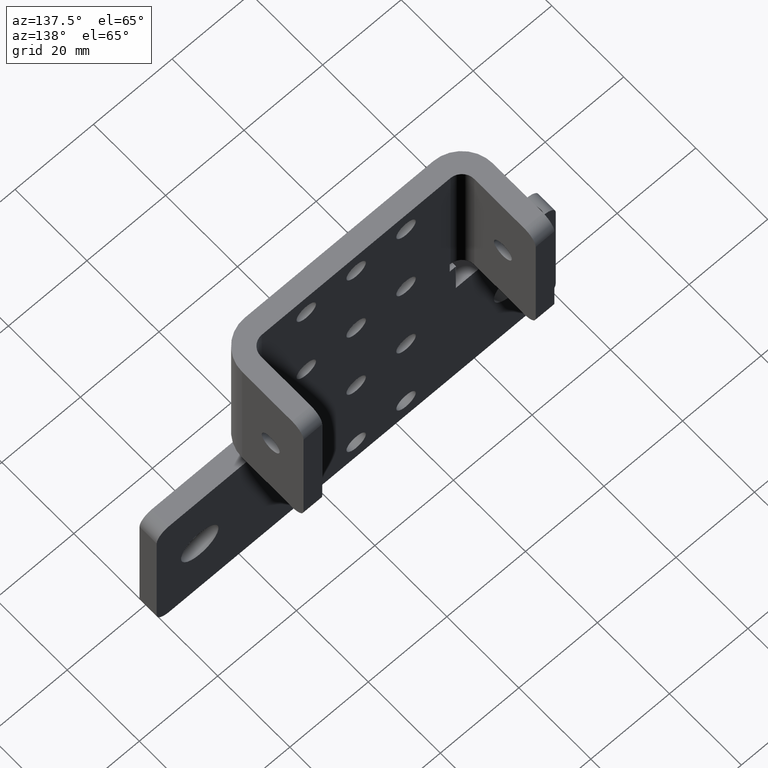
[diagram: clean part render]
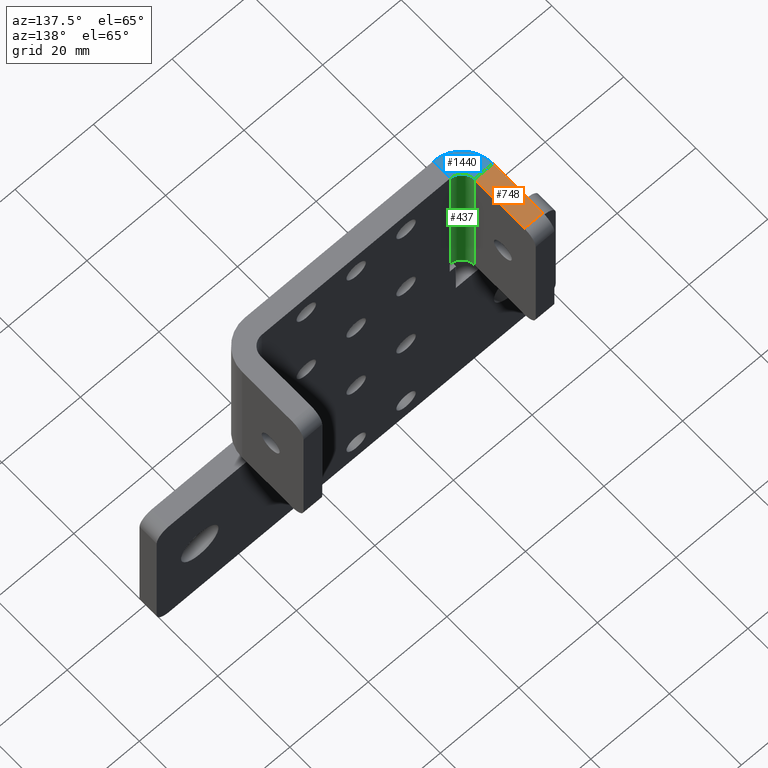
[diagram: same view with three faces highlighted in distinct colors, each labeled with its STEP entity id]
A machine part, auxiliary view with three faces highlighted in distinct colors.
Their STEP definitions:

[orange] entity #748 — the highlighted planar face has unit normal (0, 0, 1).
#39 = LINE ( 'NONE', #1433, #1728 ) ;
#78 = VERTEX_POINT ( 'NONE', #563 ) ;
#105 = DIRECTION ( 'NONE',  ( -1.000000000000000000, -3.429815434606731363E-15, 3.055308241372560376E-27 ) ) ;
#169 = CARTESIAN_POINT ( 'NONE',  ( 0.7424999999999980504, 0.8589999999999997637, 1.999999999999999778 ) ) ;
#190 = ORIENTED_EDGE ( 'NONE', *, *, #1309, .F. ) ;
#231 = VECTOR ( 'NONE', #105, 39.37007874015748143 ) ;
#351 = CARTESIAN_POINT ( 'NONE',  ( 0.9299999999999978284, 0.8590000000000005409, 1.999999999999999778 ) ) ;
#446 = DIRECTION ( 'NONE',  ( 3.429815434606730968E-15, -1.000000000000000000, -1.047914336374075238E-41 ) ) ;
#467 = ORIENTED_EDGE ( 'NONE', *, *, #969, .F. ) ;
#529 = CARTESIAN_POINT ( 'NONE',  ( 0.7424999999999998268, 0.3124999999999991118, 1.999999999999999778 ) ) ;
#563 = CARTESIAN_POINT ( 'NONE',  ( 0.7424999999999979394, 0.8589999999999997637, 1.999999999999999778 ) ) ;
#656 = LINE ( 'NONE', #169, #1392 ) ;
#664 = VERTEX_POINT ( 'NONE', #351 ) ;
#690 = EDGE_CURVE ( 'NONE', #78, #765, #39, .T. ) ;
#730 = VERTEX_POINT ( 'NONE', #1770 ) ;
#748 = ADVANCED_FACE ( 'NONE', ( #1503 ), #1073, .T. ) ;
#765 = VERTEX_POINT ( 'NONE', #529 ) ;
#772 = DIRECTION ( 'NONE',  ( -1.000000000000000000, -3.491481338843134539E-15, 3.055308241372560376E-27 ) ) ;
#828 = ORIENTED_EDGE ( 'NONE', *, *, #690, .T. ) ;
#846 = LINE ( 'NONE', #1118, #1771 ) ;
#969 = EDGE_CURVE ( 'NONE', #664, #730, #846, .T. ) ;
#1070 = LINE ( 'NONE', #1806, #231 ) ;
#1073 = PLANE ( 'NONE',  #1576 ) ;
#1118 = CARTESIAN_POINT ( 'NONE',  ( 0.9300000000000008260, -1.007508283915726926E-14, 1.999999999999999778 ) ) ;
#1200 = DIRECTION ( 'NONE',  ( 1.000000000000000000, 0.0000000000000000000, -3.055308241372560376E-27 ) ) ;
#1270 = EDGE_CURVE ( 'NONE', #664, #78, #656, .T. ) ;
#1285 = EDGE_LOOP ( 'NONE', ( #467, #1536, #828, #190 ) ) ;
#1309 = EDGE_CURVE ( 'NONE', #730, #765, #1070, .T. ) ;
#1392 = VECTOR ( 'NONE', #772, 39.37007874015748143 ) ;
#1410 = CARTESIAN_POINT ( 'NONE',  ( 0.7425000000000003819, 0.1874999999999993616, 1.999999999999999778 ) ) ;
#1433 = CARTESIAN_POINT ( 'NONE',  ( 0.7425000000000001599, 0.1874999999999993616, 1.999999999999999778 ) ) ;
#1503 = FACE_OUTER_BOUND ( 'NONE', #1285, .T. ) ;
#1508 = DIRECTION ( 'NONE',  ( 3.055308241372560376E-27, 0.0000000000000000000, 1.000000000000000000 ) ) ;
#1517 = DIRECTION ( 'NONE',  ( 3.429815434606730968E-15, -1.000000000000000000, -1.047914336374075238E-41 ) ) ;
#1536 = ORIENTED_EDGE ( 'NONE', *, *, #1270, .T. ) ;
#1576 = AXIS2_PLACEMENT_3D ( 'NONE', #1410, #1508, #1200 ) ;
#1728 = VECTOR ( 'NONE', #446, 39.37007874015748143 ) ;
#1770 = CARTESIAN_POINT ( 'NONE',  ( 0.9299999999999998268, 0.3124999999999996669, 1.999999999999999778 ) ) ;
#1771 = VECTOR ( 'NONE', #1517, 39.37007874015748143 ) ;
#1806 = CARTESIAN_POINT ( 'NONE',  ( 0.9300000000000000488, 0.3124999999999997224, 1.999999999999999778 ) ) ;

[blue] entity #1440 — the highlighted planar face has unit normal (0, 0, -1).
#73 = EDGE_CURVE ( 'NONE', #765, #754, #1428, .T. ) ;
#105 = DIRECTION ( 'NONE',  ( -1.000000000000000000, -3.429815434606731363E-15, 3.055308241372560376E-27 ) ) ;
#110 = EDGE_LOOP ( 'NONE', ( #639, #923, #687, #370 ) ) ;
#216 = DIRECTION ( 'NONE',  ( 1.092739197465705090E-15, -1.000000000000000000, 0.0000000000000000000 ) ) ;
#231 = VECTOR ( 'NONE', #105, 39.37007874015748143 ) ;
#254 = FACE_OUTER_BOUND ( 'NONE', #110, .T. ) ;
#295 = AXIS2_PLACEMENT_3D ( 'NONE', #1763, #1527, #507 ) ;
#370 = ORIENTED_EDGE ( 'NONE', *, *, #1573, .F. ) ;
#476 = CIRCLE ( 'NONE', #630, 0.1250000000000000278 ) ;
#507 = DIRECTION ( 'NONE',  ( 1.000000000000000000, 0.0000000000000000000, 0.0000000000000000000 ) ) ;
#529 = CARTESIAN_POINT ( 'NONE',  ( 0.7424999999999998268, 0.3124999999999991118, 1.999999999999999778 ) ) ;
#577 = CARTESIAN_POINT ( 'NONE',  ( 1.055000000000000160, 6.829619984160658046E-17, 1.999999999999999778 ) ) ;
#630 = AXIS2_PLACEMENT_3D ( 'NONE', #1740, #911, #1598 ) ;
#639 = ORIENTED_EDGE ( 'NONE', *, *, #1495, .F. ) ;
#660 = CARTESIAN_POINT ( 'NONE',  ( 1.054999999999999716, 0.3125000000000000555, 1.999999999999999778 ) ) ;
#687 = ORIENTED_EDGE ( 'NONE', *, *, #73, .T. ) ;
#730 = VERTEX_POINT ( 'NONE', #1770 ) ;
#754 = VERTEX_POINT ( 'NONE', #577 ) ;
#765 = VERTEX_POINT ( 'NONE', #529 ) ;
#847 = CARTESIAN_POINT ( 'NONE',  ( 1.054999999999999938, 0.1875000000000000555, 1.999999999999999778 ) ) ;
#891 = VECTOR ( 'NONE', #216, 39.37007874015748143 ) ;
#911 = DIRECTION ( 'NONE',  ( -0.0000000000000000000, -0.0000000000000000000, 1.000000000000000000 ) ) ;
#923 = ORIENTED_EDGE ( 'NONE', *, *, #1309, .T. ) ;
#968 = AXIS2_PLACEMENT_3D ( 'NONE', #660, #1811, #1641 ) ;
#979 = LINE ( 'NONE', #847, #891 ) ;
#1070 = LINE ( 'NONE', #1806, #231 ) ;
#1171 = VERTEX_POINT ( 'NONE', #1355 ) ;
#1309 = EDGE_CURVE ( 'NONE', #730, #765, #1070, .T. ) ;
#1355 = CARTESIAN_POINT ( 'NONE',  ( 1.054999999999999938, 0.1875000000000000555, 1.999999999999999778 ) ) ;
#1428 = CIRCLE ( 'NONE', #295, 0.3125000000000000000 ) ;
#1440 = ADVANCED_FACE ( 'NONE', ( #254 ), #1581, .F. ) ;
#1495 = EDGE_CURVE ( 'NONE', #730, #1171, #476, .T. ) ;
#1527 = DIRECTION ( 'NONE',  ( -0.0000000000000000000, -0.0000000000000000000, 1.000000000000000000 ) ) ;
#1573 = EDGE_CURVE ( 'NONE', #1171, #754, #979, .T. ) ;
#1581 = PLANE ( 'NONE',  #968 ) ;
#1598 = DIRECTION ( 'NONE',  ( 1.000000000000000000, 0.0000000000000000000, 0.0000000000000000000 ) ) ;
#1641 = DIRECTION ( 'NONE',  ( -1.000000000000000000, 0.0000000000000000000, -0.0000000000000000000 ) ) ;
#1740 = CARTESIAN_POINT ( 'NONE',  ( 1.054999999999999716, 0.3125000000000000555, 1.999999999999999778 ) ) ;
#1763 = CARTESIAN_POINT ( 'NONE',  ( 1.054999999999999716, 0.3125000000000000555, 1.999999999999999778 ) ) ;
#1770 = CARTESIAN_POINT ( 'NONE',  ( 0.9299999999999998268, 0.3124999999999996669, 1.999999999999999778 ) ) ;
#1806 = CARTESIAN_POINT ( 'NONE',  ( 0.9300000000000000488, 0.3124999999999997224, 1.999999999999999778 ) ) ;
#1811 = DIRECTION ( 'NONE',  ( 0.0000000000000000000, 0.0000000000000000000, -1.000000000000000000 ) ) ;

[green] entity #437 — the highlighted cylindrical surface (edge-blend (fillet) strip) has radius 3.175 mm, axis along (-0, -0, 1).
#79 = AXIS2_PLACEMENT_3D ( 'NONE', #196, #1038, #842 ) ;
#114 = CARTESIAN_POINT ( 'NONE',  ( 1.054999999999999716, 0.3125000000000000555, 0.4999999999999993339 ) ) ;
#196 = CARTESIAN_POINT ( 'NONE',  ( 1.054999999999999716, 0.3125000000000000555, 1.999999999999999778 ) ) ;
#338 = EDGE_LOOP ( 'NONE', ( #1559, #567, #974, #1658 ) ) ;
#398 = CARTESIAN_POINT ( 'NONE',  ( 1.054999999999999938, 0.1875000000000000555, 0.4999999999999993339 ) ) ;
#408 = FACE_OUTER_BOUND ( 'NONE', #338, .T. ) ;
#437 = ADVANCED_FACE ( 'NONE', ( #408 ), #1386, .F. ) ;
#476 = CIRCLE ( 'NONE', #630, 0.1250000000000000278 ) ;
#561 = LINE ( 'NONE', #1015, #1627 ) ;
#567 = ORIENTED_EDGE ( 'NONE', *, *, #1467, .T. ) ;
#630 = AXIS2_PLACEMENT_3D ( 'NONE', #1740, #911, #1598 ) ;
#725 = VERTEX_POINT ( 'NONE', #1605 ) ;
#730 = VERTEX_POINT ( 'NONE', #1770 ) ;
#842 = DIRECTION ( 'NONE',  ( -1.000000000000000000, -3.278217592397115073E-15, 0.0000000000000000000 ) ) ;
#869 = DIRECTION ( 'NONE',  ( 3.055230160252446295E-27, 9.106159978880877395E-17, 1.000000000000000000 ) ) ;
#911 = DIRECTION ( 'NONE',  ( -0.0000000000000000000, -0.0000000000000000000, 1.000000000000000000 ) ) ;
#974 = ORIENTED_EDGE ( 'NONE', *, *, #1182, .T. ) ;
#1008 = AXIS2_PLACEMENT_3D ( 'NONE', #114, #1547, #1385 ) ;
#1015 = CARTESIAN_POINT ( 'NONE',  ( 0.9299999999999998268, 0.3124999999999996114, 0.4999999999999995004 ) ) ;
#1038 = DIRECTION ( 'NONE',  ( -0.0000000000000000000, -0.0000000000000000000, 1.000000000000000000 ) ) ;
#1153 = CIRCLE ( 'NONE', #1008, 0.1250000000000000278 ) ;
#1154 = LINE ( 'NONE', #1597, #1237 ) ;
#1171 = VERTEX_POINT ( 'NONE', #1355 ) ;
#1182 = EDGE_CURVE ( 'NONE', #725, #730, #561, .T. ) ;
#1237 = VECTOR ( 'NONE', #1450, 39.37007874015748143 ) ;
#1355 = CARTESIAN_POINT ( 'NONE',  ( 1.054999999999999938, 0.1875000000000000555, 1.999999999999999778 ) ) ;
#1385 = DIRECTION ( 'NONE',  ( 1.000000000000000000, -1.092739197465705090E-15, 0.0000000000000000000 ) ) ;
#1386 = CYLINDRICAL_SURFACE ( 'NONE', #79, 0.1250000000000000278 ) ;
#1450 = DIRECTION ( 'NONE',  ( 0.0000000000000000000, 0.0000000000000000000, -1.000000000000000000 ) ) ;
#1451 = VERTEX_POINT ( 'NONE', #398 ) ;
#1467 = EDGE_CURVE ( 'NONE', #1451, #725, #1153, .T. ) ;
#1495 = EDGE_CURVE ( 'NONE', #730, #1171, #476, .T. ) ;
#1547 = DIRECTION ( 'NONE',  ( 0.0000000000000000000, 0.0000000000000000000, -1.000000000000000000 ) ) ;
#1559 = ORIENTED_EDGE ( 'NONE', *, *, #1637, .T. ) ;
#1597 = CARTESIAN_POINT ( 'NONE',  ( 1.054999999999999938, 0.1875000000000000555, 1.999999999999999778 ) ) ;
#1598 = DIRECTION ( 'NONE',  ( 1.000000000000000000, 0.0000000000000000000, 0.0000000000000000000 ) ) ;
#1605 = CARTESIAN_POINT ( 'NONE',  ( 0.9299999999999998268, 0.3124999999999996669, 0.4999999999999993339 ) ) ;
#1627 = VECTOR ( 'NONE', #869, 39.37007874015748143 ) ;
#1637 = EDGE_CURVE ( 'NONE', #1171, #1451, #1154, .T. ) ;
#1658 = ORIENTED_EDGE ( 'NONE', *, *, #1495, .T. ) ;
#1740 = CARTESIAN_POINT ( 'NONE',  ( 1.054999999999999716, 0.3125000000000000555, 1.999999999999999778 ) ) ;
#1770 = CARTESIAN_POINT ( 'NONE',  ( 0.9299999999999998268, 0.3124999999999996669, 1.999999999999999778 ) ) ;